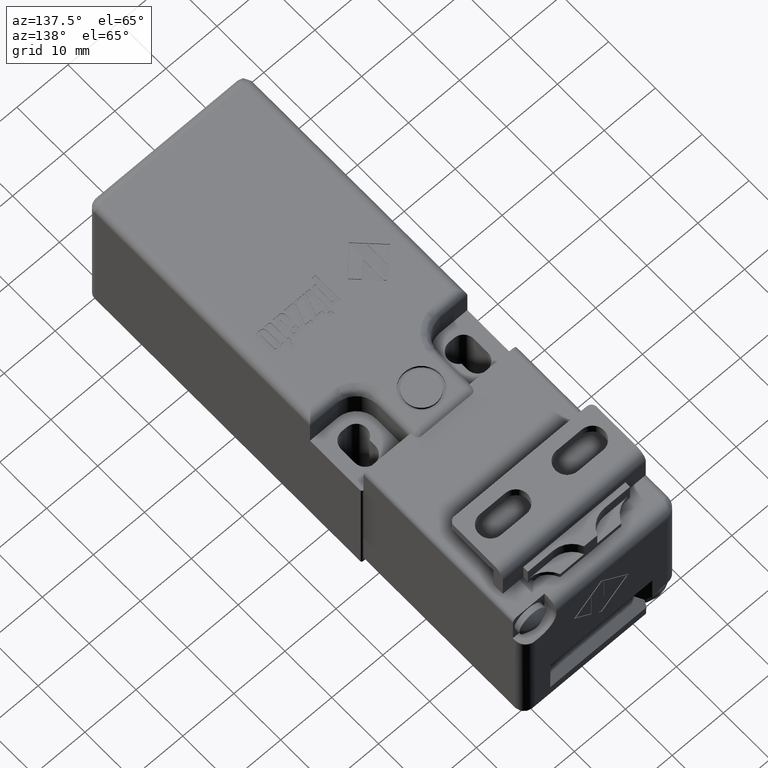
[diagram: clean part render]
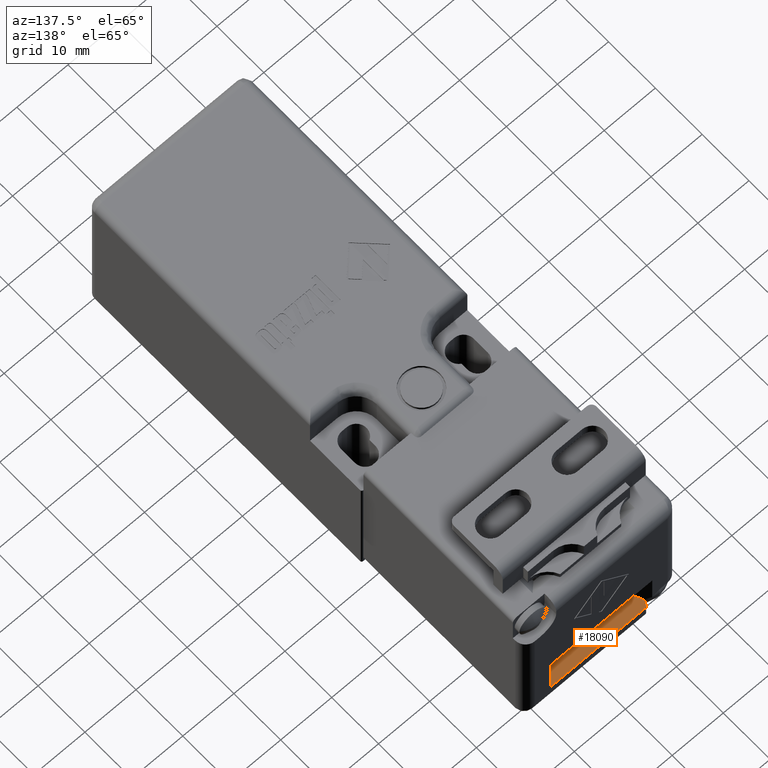
[diagram: same view with one face highlighted and labeled with its STEP entity id]
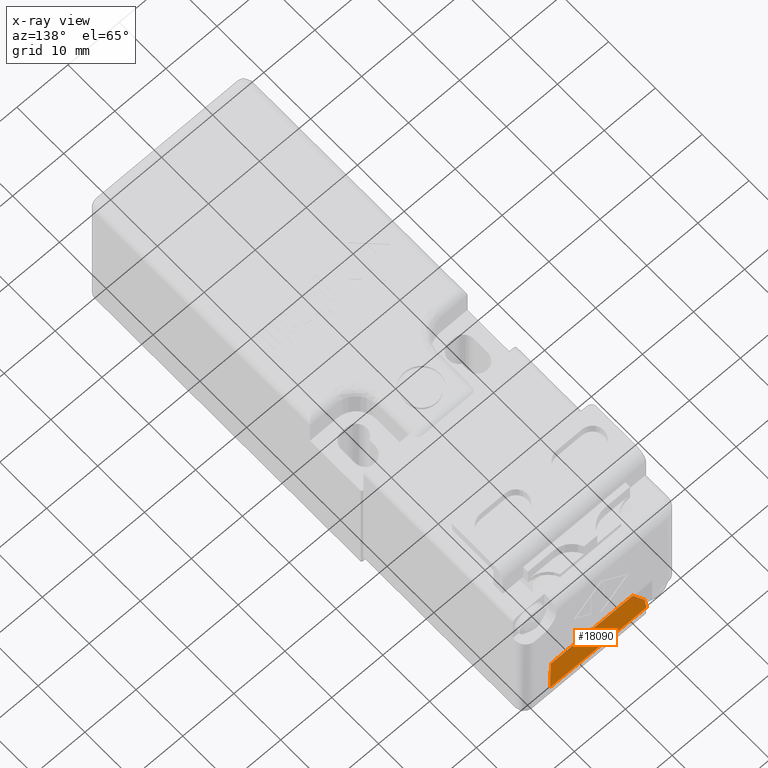
[diagram: x-ray of the same camera — body ghosted, the highlighted face saturated]
A machine part, auxiliary view. The second image highlights one B-rep face of the part: STEP entity #18090.
The next image is the same camera in x-ray: the body ghosted, the highlighted face saturated — about 0% of this face is hidden behind the body in this view.
In plain terms, the highlighted planar face has unit normal (0, 0.7071, 0.7071).
Its self-contained STEP definition (entity closure, byte-faithful):
#17368=CARTESIAN_POINT('',(-11.489131953939536,1.999999999999979,3.749999999999998));
#17369=VERTEX_POINT('',#17368);
#17377=CARTESIAN_POINT('',(7.400000000000013,1.999999999999979,3.749999999999998));
#17378=VERTEX_POINT('',#17377);
#17379=CARTESIAN_POINT('',(-11.489131953939536,1.999999999999979,3.749999999999998));
#17380=DIRECTION('',(1.0,0.0,0.0));
#17381=VECTOR('',#17380,18.889131953939550);
#17382=LINE('',#17379,#17381);
#17383=EDGE_CURVE('',#17369,#17378,#17382,.T.);
#17908=CARTESIAN_POINT('',(5.400000000000004,-2.131628E-014,5.750000000000005));
#17909=VERTEX_POINT('',#17908);
#17994=CARTESIAN_POINT('',(-10.600000000000012,-2.131628E-014,5.750000000000011));
#17995=VERTEX_POINT('',#17994);
#17996=CARTESIAN_POINT('',(5.400000000000004,-2.131628E-014,5.750000000000009));
#17997=DIRECTION('',(-1.0,0.0,0.0));
#17998=VECTOR('',#17997,16.000000000000014);
#17999=LINE('',#17996,#17998);
#18000=EDGE_CURVE('',#17909,#17995,#17999,.T.);
#18047=CARTESIAN_POINT('',(5.400000000000004,-2.131628E-014,5.750000000000005));
#18048=DIRECTION('',(0.577350269189627,0.577350269189624,-0.577350269189626));
#18049=VECTOR('',#18048,3.464101615137763);
#18050=LINE('',#18047,#18049);
#18051=EDGE_CURVE('',#17909,#17378,#18050,.T.);
#18058=CARTESIAN_POINT('',(8.360014368765354,-0.100000000000030,5.850000000000011));
#18059=DIRECTION('',(3.348713E-016,0.707106781186548,0.707106781186547));
#18060=DIRECTION('',(5.703852E-016,0.707106781186547,-0.707106781186548));
#18061=AXIS2_PLACEMENT_3D('',#18058,#18059,#18060);
#18062=PLANE('',#18061);
#18063=ORIENTED_EDGE('',*,*,#18051,.T.);
#18064=ORIENTED_EDGE('',*,*,#17383,.F.);
#18065=CARTESIAN_POINT('',(-11.800287375306802,1.200287375306772,4.549712624693216));
#18066=VERTEX_POINT('',#18065);
#18067=CARTESIAN_POINT('',(-11.489131953939536,1.999999999999979,3.749999999999998));
#18068=CARTESIAN_POINT('',(-11.556578038119468,1.720245509190306,4.029754490809674));
#18069=CARTESIAN_POINT('',(-11.660924644453774,1.452060246459666,4.297939753540307));
#18070=CARTESIAN_POINT('',(-11.800287375306802,1.200287375306772,4.549712624693216));
#18078=(BOUNDED_CURVE()B_SPLINE_CURVE(3,(#18067,#18068,#18069,#18070),.UNSPECIFIED.,.F.,.U.)B_SPLINE_CURVE_WITH_KNOTS((4,4),(1.807371937640436,2.076342305957032),.UNSPECIFIED.)CURVE()GEOMETRIC_REPRESENTATION_ITEM()RATIONAL_B_SPLINE_CURVE((1.0,0.993980326075863,0.993980326075863,1.0))REPRESENTATION_ITEM(''));
#18079=EDGE_CURVE('',#17369,#18066,#18078,.T.);
#18080=ORIENTED_EDGE('',*,*,#18079,.T.);
#18081=CARTESIAN_POINT('',(-10.600000000000012,-2.131628E-014,5.750000000000011));
#18082=DIRECTION('',(-0.577350269189626,0.577350269189625,-0.577350269189626));
#18083=VECTOR('',#18082,2.078958717714861);
#18084=LINE('',#18081,#18083);
#18085=EDGE_CURVE('',#17995,#18066,#18084,.T.);
#18086=ORIENTED_EDGE('',*,*,#18085,.F.);
#18087=ORIENTED_EDGE('',*,*,#18000,.F.);
#18088=EDGE_LOOP('',(#18063,#18064,#18080,#18086,#18087));
#18089=FACE_OUTER_BOUND('',#18088,.T.);
#18090=ADVANCED_FACE('',(#18089),#18062,.T.);